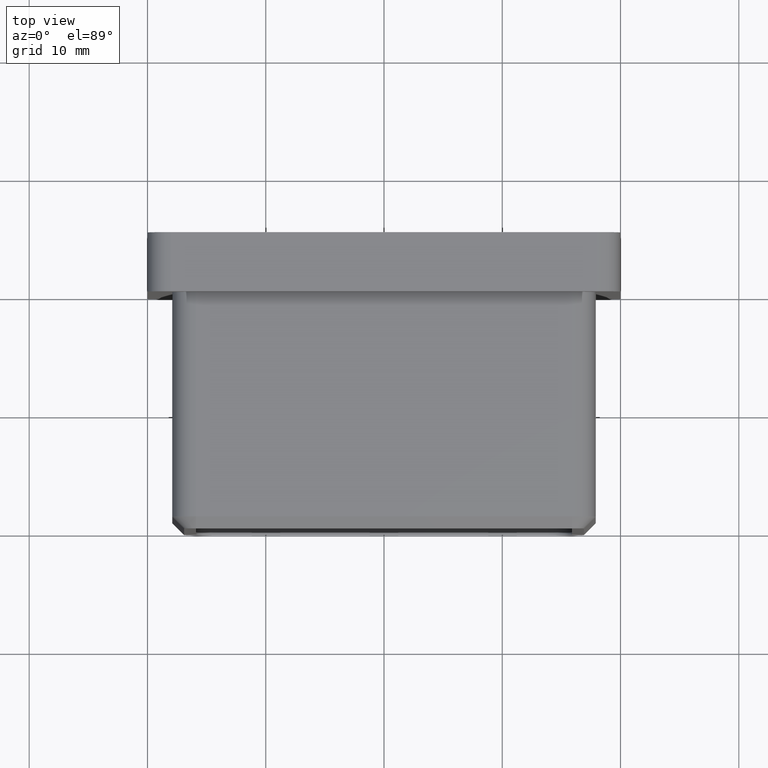
[diagram: clean part render]
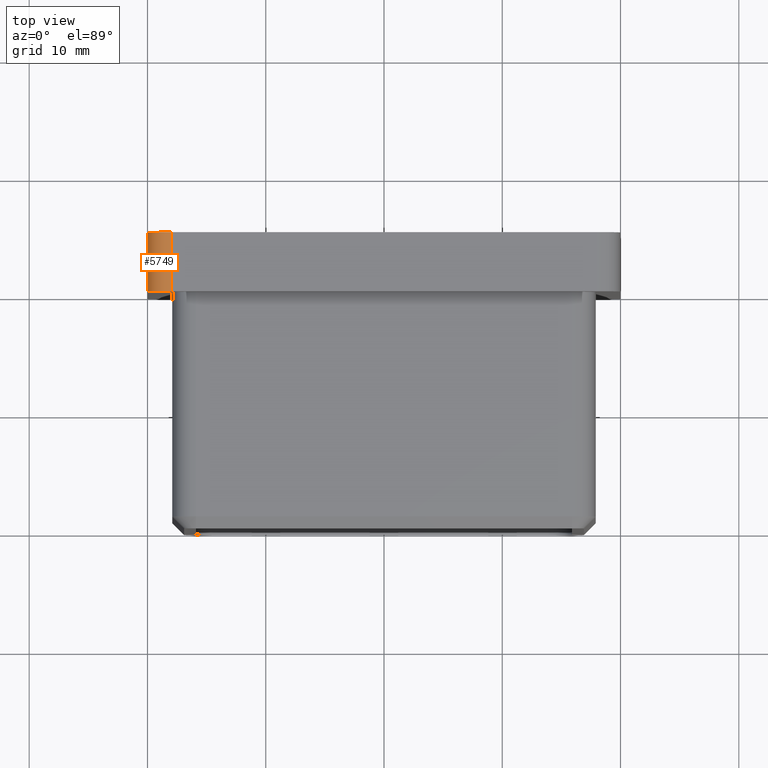
[diagram: same view with one face highlighted and labeled with its STEP entity id]
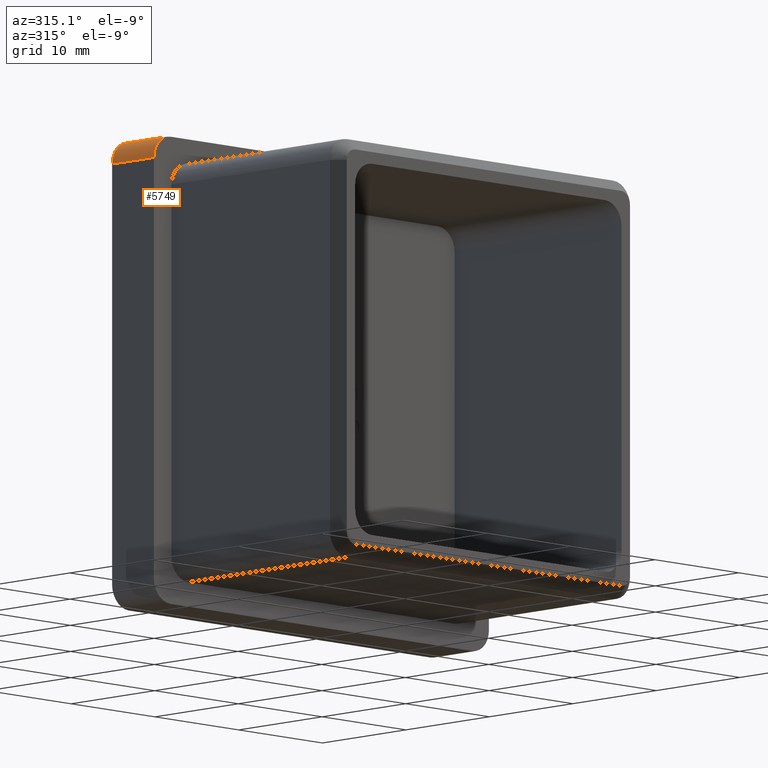
[diagram: same view with one face highlighted and labeled with its STEP entity id]
A machine part, top view. The second image highlights one B-rep face of the part: STEP entity #5749.
A second angle (auxiliary view) of the same face is appended — the face is thin or edge-on in the first view.
In plain terms, the highlighted cylindrical surface (edge-blend (fillet) strip) has radius 2 mm, axis along (0, -1, 0).
Its self-contained STEP definition (entity closure, byte-faithful):
#534 = VERTEX_POINT ( 'NONE', #11830 ) ;
#670 = CARTESIAN_POINT ( 'NONE',  ( -19.99999999999999300, 5.000000000000000000, 18.00000000000000700 ) ) ;
#1430 = CARTESIAN_POINT ( 'NONE',  ( -17.99999999999999600, 0.0000000000000000000, 18.00000000000000400 ) ) ;
#1458 = CARTESIAN_POINT ( 'NONE',  ( -19.99999999999999300, 0.0000000000000000000, 18.00000000000000700 ) ) ;
#1508 = CIRCLE ( 'NONE', #2986, 2.000000000000001800 ) ;
#1611 = CARTESIAN_POINT ( 'NONE',  ( -19.99999999999999300, 5.000000000000000000, 18.00000000000000700 ) ) ;
#1861 = AXIS2_PLACEMENT_3D ( 'NONE', #12784, #12742, #13864 ) ;
#2449 = ORIENTED_EDGE ( 'NONE', *, *, #4099, .F. ) ;
#2986 = AXIS2_PLACEMENT_3D ( 'NONE', #1430, #13879, #4936 ) ;
#3007 = DIRECTION ( 'NONE',  ( 0.0000000000000000000, 0.0000000000000000000, -1.000000000000000000 ) ) ;
#3086 = LINE ( 'NONE', #1611, #11691 ) ;
#3682 = ORIENTED_EDGE ( 'NONE', *, *, #10280, .F. ) ;
#4099 = EDGE_CURVE ( 'NONE', #9810, #5230, #10595, .T. ) ;
#4936 = DIRECTION ( 'NONE',  ( 0.0000000000000000000, 0.0000000000000000000, 1.000000000000000000 ) ) ;
#4942 = CYLINDRICAL_SURFACE ( 'NONE', #8082, 2.000000000000001800 ) ;
#4965 = ORIENTED_EDGE ( 'NONE', *, *, #10483, .F. ) ;
#4977 = DIRECTION ( 'NONE',  ( -0.0000000000000000000, 1.000000000000000000, -0.0000000000000000000 ) ) ;
#5123 = FACE_OUTER_BOUND ( 'NONE', #8643, .T. ) ;
#5230 = VERTEX_POINT ( 'NONE', #10494 ) ;
#5749 = ADVANCED_FACE ( 'NONE', ( #5123 ), #4942, .T. ) ;
#6066 = VERTEX_POINT ( 'NONE', #1458 ) ;
#7182 = CARTESIAN_POINT ( 'NONE',  ( -17.99999999999999600, 5.000000000000000000, 20.00000000000000000 ) ) ;
#7374 = ORIENTED_EDGE ( 'NONE', *, *, #11641, .F. ) ;
#8082 = AXIS2_PLACEMENT_3D ( 'NONE', #9723, #13174, #3007 ) ;
#8643 = EDGE_LOOP ( 'NONE', ( #2449, #3682, #7374, #4965 ) ) ;
#9051 = LINE ( 'NONE', #7182, #12365 ) ;
#9723 = CARTESIAN_POINT ( 'NONE',  ( -17.99999999999999600, 5.000000000000000000, 18.00000000000000400 ) ) ;
#9810 = VERTEX_POINT ( 'NONE', #670 ) ;
#10280 = EDGE_CURVE ( 'NONE', #6066, #9810, #3086, .T. ) ;
#10399 = DIRECTION ( 'NONE',  ( 0.0000000000000000000, -1.000000000000000000, 0.0000000000000000000 ) ) ;
#10483 = EDGE_CURVE ( 'NONE', #5230, #534, #9051, .T. ) ;
#10494 = CARTESIAN_POINT ( 'NONE',  ( -17.99999999999999600, 5.000000000000000000, 20.00000000000000000 ) ) ;
#10595 = CIRCLE ( 'NONE', #1861, 2.000000000000001800 ) ;
#11641 = EDGE_CURVE ( 'NONE', #534, #6066, #1508, .T. ) ;
#11691 = VECTOR ( 'NONE', #4977, 1000.000000000000000 ) ;
#11830 = CARTESIAN_POINT ( 'NONE',  ( -17.99999999999999600, 0.0000000000000000000, 20.00000000000000000 ) ) ;
#12365 = VECTOR ( 'NONE', #10399, 1000.000000000000000 ) ;
#12742 = DIRECTION ( 'NONE',  ( 0.0000000000000000000, 1.000000000000000000, 0.0000000000000000000 ) ) ;
#12784 = CARTESIAN_POINT ( 'NONE',  ( -17.99999999999999600, 5.000000000000000000, 18.00000000000000400 ) ) ;
#13174 = DIRECTION ( 'NONE',  ( 0.0000000000000000000, -1.000000000000000000, 0.0000000000000000000 ) ) ;
#13864 = DIRECTION ( 'NONE',  ( 0.0000000000000000000, 0.0000000000000000000, 1.000000000000000000 ) ) ;
#13879 = DIRECTION ( 'NONE',  ( -0.0000000000000000000, -1.000000000000000000, -0.0000000000000000000 ) ) ;